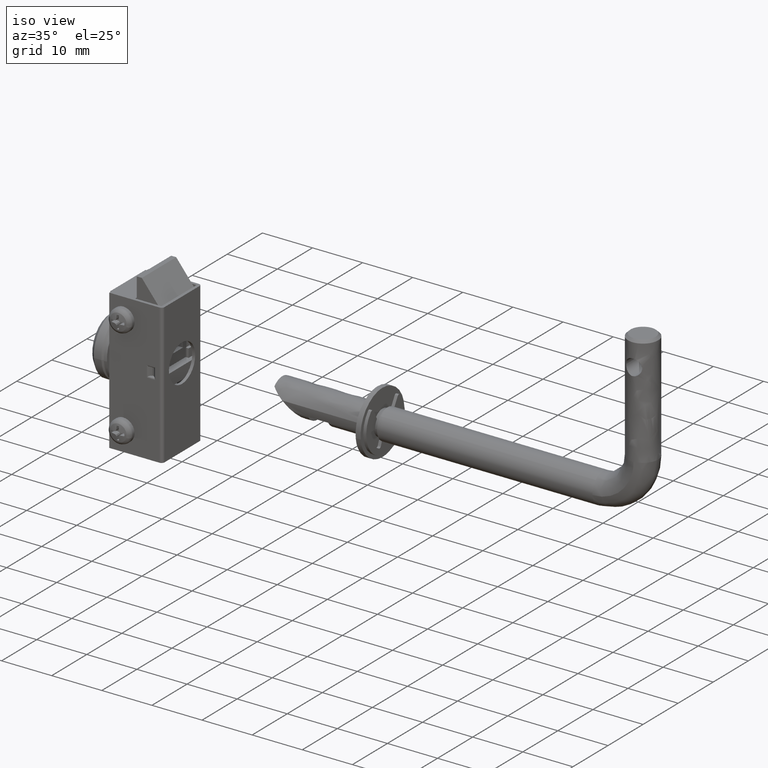
[diagram: clean part render]
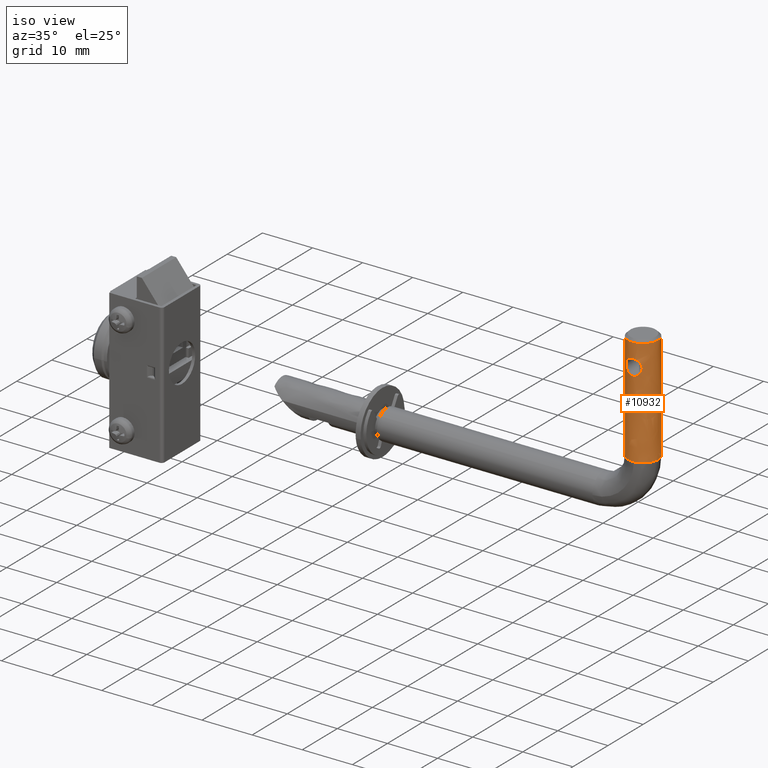
[diagram: same view with one face highlighted and labeled with its STEP entity id]
A machine part, iso view. The second image highlights one B-rep face of the part: STEP entity #10932.
In plain terms, the highlighted face is a freeform B-spline surface patch.
Its self-contained STEP definition (entity closure, byte-faithful):
#9987=CARTESIAN_POINT('',(69.823845482699298,-2.065063301075790,45.500000000000000));
#9988=VERTEX_POINT('',#9987);
#10004=CARTESIAN_POINT('',(71.999969000000092,-2.999999999999993,45.500000000000000));
#10005=VERTEX_POINT('',#10004);
#10006=CARTESIAN_POINT('',(71.999969000000092,-2.999999999999993,45.500000000000000));
#10007=CARTESIAN_POINT('',(70.711066586403973,-2.999999999999993,45.500000000000000));
#10008=CARTESIAN_POINT('',(69.823845482699298,-2.065063301075790,45.500000000000000));
#10016=(BOUNDED_CURVE()B_SPLINE_CURVE(2,(#10006,#10007,#10008),.UNSPECIFIED.,.F.,.U.)B_SPLINE_CURVE_WITH_KNOTS((3,3),(0.500000000000000,0.628950532427898),.UNSPECIFIED.)CURVE()GEOMETRIC_REPRESENTATION_ITEM()RATIONAL_B_SPLINE_CURVE((1.0,0.848925053957938,0.853699665744995))REPRESENTATION_ITEM(''));
#10017=EDGE_CURVE('',#10005,#9988,#10016,.T.);
#10019=CARTESIAN_POINT('',(74.176092517300887,2.065063301075807,45.500000000000000));
#10020=VERTEX_POINT('',#10019);
#10021=CARTESIAN_POINT('',(74.176092517300887,2.065063301075807,45.500000000000007));
#10022=CARTESIAN_POINT('',(74.999969000000092,1.196877957152594,45.500000000000007));
#10023=CARTESIAN_POINT('',(74.999969000000092,6.888411E-015,45.500000000000000));
#10024=CARTESIAN_POINT('',(74.999969000000092,-2.999999999999993,45.500000000000014));
#10025=CARTESIAN_POINT('',(71.999969000000092,-2.999999999999993,45.500000000000000));
#10033=(BOUNDED_CURVE()B_SPLINE_CURVE(2,(#10021,#10022,#10023,#10024,#10025),.UNSPECIFIED.,.F.,.U.)B_SPLINE_CURVE_WITH_KNOTS((3,2,3),(0.128950532427898,0.250000000000000,0.500000000000000),.UNSPECIFIED.)CURVE()GEOMETRIC_REPRESENTATION_ITEM()RATIONAL_B_SPLINE_CURVE((0.853699665744995,0.858181727228609,1.0,0.707106781186548,1.0))REPRESENTATION_ITEM(''));
#10034=EDGE_CURVE('',#10020,#10005,#10033,.T.);
#10147=CARTESIAN_POINT('',(73.587595390500852,-2.545475182302232,41.198604859401740));
#10148=VERTEX_POINT('',#10147);
#10154=CARTESIAN_POINT('',(72.005606471608118,-2.999994703147630,42.599990068379768));
#10155=VERTEX_POINT('',#10154);
#10156=CARTESIAN_POINT('',(73.587595390500852,-2.545475182302232,41.198604859401740));
#10157=CARTESIAN_POINT('',(73.582749011089618,-2.548498835997282,41.237358478990522));
#10158=CARTESIAN_POINT('',(73.567995361629585,-2.557655808431483,41.328063416698427));
#10159=CARTESIAN_POINT('',(73.545667456432554,-2.571213076018919,41.416650394664337));
#10160=CARTESIAN_POINT('',(73.514875810477278,-2.589474416957653,41.517531279403912));
#10161=CARTESIAN_POINT('',(73.496860091146843,-2.599971811698215,41.567503497107353));
#10162=CARTESIAN_POINT('',(73.436382139487321,-2.634172115528533,41.712523630936623));
#10163=CARTESIAN_POINT('',(73.387427891106498,-2.660650773724465,41.803511676603769));
#10164=CARTESIAN_POINT('',(73.301286646211707,-2.703257028515044,41.932330778691522));
#10165=CARTESIAN_POINT('',(73.270299699333350,-2.718003321669512,41.974119680139367));
#10166=CARTESIAN_POINT('',(73.205064660215683,-2.747549197376540,42.053752194129522));
#10167=CARTESIAN_POINT('',(73.170730907663895,-2.762396307594811,42.091756210529127));
#10168=CARTESIAN_POINT('',(73.062572423328788,-2.806588887480741,42.200555802698190));
#10169=CARTESIAN_POINT('',(72.983479114315926,-2.835645682963112,42.266321744173247));
#10170=CARTESIAN_POINT('',(72.810886389755865,-2.889739014385298,42.383212164390962));
#10171=CARTESIAN_POINT('',(72.719912434903890,-2.913979800689720,42.432658611702713));
#10172=CARTESIAN_POINT('',(72.576182478796497,-2.944550429849274,42.493547903028272));
#10173=CARTESIAN_POINT('',(72.527052819429997,-2.953775750627682,42.511612707901577));
#10174=CARTESIAN_POINT('',(72.426202721218445,-2.970005614910065,42.543086240717180));
#10175=CARTESIAN_POINT('',(72.374133625087964,-2.977038073690178,42.556547105287400));
#10176=CARTESIAN_POINT('',(72.217582902818904,-2.993937812442387,42.588709041921362));
#10177=CARTESIAN_POINT('',(72.112138387863098,-2.999794512576407,42.599614709391517));
#10178=CARTESIAN_POINT('',(72.005606471608118,-2.999994703147630,42.599990068379768));
#10179=B_SPLINE_CURVE_WITH_KNOTS('',3,(#10156,#10157,#10158,#10159,#10160,#10161,#10162,#10163,#10164,#10165,#10166,#10167,#10168,#10169,#10170,#10171,#10172,#10173,#10174,#10175,#10176,#10177,#10178),.UNSPECIFIED.,.F.,.U.,(4,1,2,2,2,2,2,2,2,2,2,4),(0.269799926700225,0.281249999999963,0.296874999999961,0.312499999999960,0.343749999999956,0.359374999999956,0.374999999999956,0.406249999999952,0.437499999999948,0.453124999999948,0.468749999999948,0.499999999999952),.UNSPECIFIED.);
#10180=EDGE_CURVE('',#10148,#10155,#10179,.T.);
#10182=CARTESIAN_POINT('',(70.400029805620449,-2.537755433232541,40.986037676887847));
#10183=VERTEX_POINT('',#10182);
#10184=CARTESIAN_POINT('',(72.005606471608118,-2.999994703147630,42.599990068379768));
#10185=CARTESIAN_POINT('',(71.952340515315953,-3.000094821517700,42.600177748016968));
#10186=CARTESIAN_POINT('',(71.898583485750621,-2.998765990972000,42.597691042330467));
#10187=CARTESIAN_POINT('',(71.791466110083576,-2.993226243276506,42.587268796588027));
#10188=CARTESIAN_POINT('',(71.685951368870704,-2.984893465814944,42.571563572389692));
#10189=CARTESIAN_POINT('',(71.583483073668575,-2.971389126666411,42.545744535013142));
#10190=CARTESIAN_POINT('',(71.482501382853997,-2.955476521700389,42.514930345699760));
#10191=CARTESIAN_POINT('',(71.432586843270641,-2.946279892931670,42.496954642997579));
#10192=CARTESIAN_POINT('',(71.286197361795345,-2.915557613365116,42.435866622225120));
#10193=CARTESIAN_POINT('',(71.194755253070653,-2.891319288351653,42.386480770195369));
#10194=CARTESIAN_POINT('',(71.065897767426350,-2.851234379537946,42.300071304720333));
#10195=CARTESIAN_POINT('',(71.024280354624409,-2.837226007186647,42.269143686187967));
#10196=CARTESIAN_POINT('',(70.944075012287414,-2.808363929500503,42.203238088362937));
#10197=CARTESIAN_POINT('',(70.905938905429807,-2.793677834807850,42.168642585616702));
#10198=CARTESIAN_POINT('',(70.797100941356931,-2.749408737837447,42.060008536328048));
#10199=CARTESIAN_POINT('',(70.731906891487782,-2.719593851155135,41.981185793019570));
#10200=CARTESIAN_POINT('',(70.645042349693412,-2.676792975335107,41.852555208993728));
#10201=CARTESIAN_POINT('',(70.617938501239124,-2.662851289355921,41.807881525511412));
#10202=CARTESIAN_POINT('',(70.568595819771119,-2.636656286610669,41.716834468106633));
#10203=CARTESIAN_POINT('',(70.546189676252382,-2.624322132773961,41.670230699783573));
#10204=CARTESIAN_POINT('',(70.485722837287568,-2.590213593363614,41.527061006430827));
#10205=CARTESIAN_POINT('',(70.454314827521941,-2.571303249235395,41.427148742193189));
#10206=CARTESIAN_POINT('',(70.411133299067188,-2.544847502926011,41.217034430571587));
#10207=CARTESIAN_POINT('',(70.400321662894783,-2.537939193378024,41.111397590866268));
#10208=CARTESIAN_POINT('',(70.399956841999582,-2.537709226712186,40.998804182104493));
#10209=CARTESIAN_POINT('',(70.399974225049121,-2.537720274518976,40.992421977537511));
#10210=CARTESIAN_POINT('',(70.400029805620449,-2.537755433232541,40.986037676887847));
#10211=B_SPLINE_CURVE_WITH_KNOTS('',3,(#10184,#10185,#10186,#10187,#10188,#10189,#10190,#10191,#10192,#10193,#10194,#10195,#10196,#10197,#10198,#10199,#10200,#10201,#10202,#10203,#10204,#10205,#10206,#10207,#10208,#10209,#10210),.UNSPECIFIED.,.F.,.U.,(4,2,1,2,2,2,2,2,2,2,2,2,2,4),(0.499999999999952,0.515624999999956,0.531249999999960,0.546874999999964,0.562499999999968,0.593749999999976,0.609374999999981,0.624999999999987,0.656249999999994,0.671874999999997,0.687499999999999,0.718750000000002,0.750000000000005,0.751877152870739),.UNSPECIFIED.);
#10212=EDGE_CURVE('',#10155,#10183,#10211,.T.);
#10344=CARTESIAN_POINT('',(71.999969000000107,-3.000000000000001,39.400000000000013));
#10345=VERTEX_POINT('',#10344);
#10346=CARTESIAN_POINT('',(70.400029805620449,-2.537755433232541,40.986037676887847));
#10347=CARTESIAN_POINT('',(70.400436862018921,-2.538012886811111,40.939280488805871));
#10348=CARTESIAN_POINT('',(70.402892745423401,-2.539563593731716,40.892410871679850));
#10349=CARTESIAN_POINT('',(70.410044749740109,-2.544043419779515,40.818726369597798));
#10350=CARTESIAN_POINT('',(70.413332194685523,-2.546097347215981,40.791908095993030));
#10351=CARTESIAN_POINT('',(70.421195638778443,-2.550980715275310,40.738861580465141));
#10352=CARTESIAN_POINT('',(70.425772735073039,-2.553810853071396,40.712577558707842));
#10353=CARTESIAN_POINT('',(70.451799415205855,-2.569780895769073,40.582310328299947));
#10354=CARTESIAN_POINT('',(70.482566710014552,-2.588370415806025,40.481755448684353));
#10355=CARTESIAN_POINT('',(70.543320348553067,-2.622731693992392,40.335962126776032));
#10356=CARTESIAN_POINT('',(70.565887764515665,-2.635183101936085,40.288590946551722));
#10357=CARTESIAN_POINT('',(70.614991863678156,-2.661318664574389,40.197173626928532));
#10358=CARTESIAN_POINT('',(70.668209408255208,-2.688769049753806,40.108732036310549));
#10359=CARTESIAN_POINT('',(70.729588887893698,-2.717983546743166,40.025930908572313));
#10360=CARTESIAN_POINT('',(70.795167279881198,-2.747681332602704,39.945898932060523));
#10361=CARTESIAN_POINT('',(70.829922433531110,-2.762702939661478,39.907466587795817));
#10362=CARTESIAN_POINT('',(70.938649487381241,-2.807086403913257,39.798270295677028));
#10363=CARTESIAN_POINT('',(71.017554590190002,-2.836008516193278,39.732882172408772));
#10364=CARTESIAN_POINT('',(71.146217189058547,-2.876304995287775,39.645825266033860));
#10365=CARTESIAN_POINT('',(71.191111367910651,-2.889293223032441,39.618519243380199));
#10366=CARTESIAN_POINT('',(71.283133250964667,-2.913487971608178,39.568606876497697));
#10367=CARTESIAN_POINT('',(71.330166158275759,-2.924684607817888,39.546010634171950));
#10368=CARTESIAN_POINT('',(71.474356733988699,-2.955230694915206,39.485201137856478));
#10369=CARTESIAN_POINT('',(71.574573602771025,-2.971554531780333,39.453886385792501));
#10370=CARTESIAN_POINT('',(71.731676958619389,-2.988443445780479,39.421748906180483));
#10371=CARTESIAN_POINT('',(71.785147314776410,-2.992778131156864,39.413575902609942));
#10372=CARTESIAN_POINT('',(71.892112635950610,-2.998538975997359,39.402734592615673));
#10373=CARTESIAN_POINT('',(71.946038173569860,-3.000000023860873,39.400000000147912));
#10374=CARTESIAN_POINT('',(71.999969000000107,-3.000000000000001,39.400000000000013));
#10375=B_SPLINE_CURVE_WITH_KNOTS('',3,(#10346,#10347,#10348,#10349,#10350,#10351,#10352,#10353,#10354,#10355,#10356,#10357,#10358,#10359,#10360,#10361,#10362,#10363,#10364,#10365,#10366,#10367,#10368,#10369,#10370,#10371,#10372,#10373,#10374),.UNSPECIFIED.,.F.,.U.,(4,2,2,2,2,2,1,2,2,2,2,2,2,2,4),(0.751877152870739,0.765625000000007,0.773437500000007,0.781250000000006,0.812500000000006,0.828125000000003,0.843750000000001,0.859374999999999,0.874999999999997,0.906249999999994,0.921874999999995,0.937499999999996,0.968749999999998,0.984374999999999,1.0),.UNSPECIFIED.);
#10376=EDGE_CURVE('',#10183,#10345,#10375,.T.);
#10378=CARTESIAN_POINT('',(71.999969000000107,-3.000000000000001,39.400000000000013));
#10379=CARTESIAN_POINT('',(72.107830656653150,-3.0,39.399999999999999));
#10380=CARTESIAN_POINT('',(72.213517938728529,-2.994204917263764,39.410792273531833));
#10381=CARTESIAN_POINT('',(72.369003280908032,-2.977671952795399,39.442242064283001));
#10382=CARTESIAN_POINT('',(72.420320563449479,-2.970850191223971,39.455289461521311));
#10383=CARTESIAN_POINT('',(72.521928122538995,-2.954692026250490,39.486598282352013));
#10384=CARTESIAN_POINT('',(72.571721756761619,-2.945425506056937,39.504727791274789));
#10385=CARTESIAN_POINT('',(72.716492294948864,-2.914845600400927,39.565581950755913));
#10386=CARTESIAN_POINT('',(72.807674274767933,-2.890633395318378,39.614934205100802));
#10387=CARTESIAN_POINT('',(72.936933458342153,-2.850286812420490,39.702002938918703));
#10388=CARTESIAN_POINT('',(72.978612578931020,-2.836200857916560,39.733152812670319));
#10389=CARTESIAN_POINT('',(73.057950817666708,-2.807570664207074,39.798617661144213));
#10390=CARTESIAN_POINT('',(73.095815508183762,-2.792963022273569,39.833066471089431));
#10391=CARTESIAN_POINT('',(73.168073868694520,-2.763521852458975,39.905402153242349));
#10392=CARTESIAN_POINT('',(73.202467424162592,-2.748687411044941,39.943288771992059));
#10393=CARTESIAN_POINT('',(73.267801235926484,-2.719170161151391,40.022634919256248));
#10394=CARTESIAN_POINT('',(73.298870626737056,-2.704419472692843,40.064310716988352));
#10395=CARTESIAN_POINT('',(73.385214393008454,-2.661806845364600,40.192699137693829));
#10396=CARTESIAN_POINT('',(73.434115570429583,-2.635405590228966,40.283075200480091));
#10397=CARTESIAN_POINT('',(73.494532948694442,-2.601309930762620,40.426442686670832));
#10398=CARTESIAN_POINT('',(73.512497867450733,-2.590866279601647,40.475542509073662));
#10399=CARTESIAN_POINT('',(73.536004994970583,-2.576950976555248,40.551342858275007));
#10400=CARTESIAN_POINT('',(73.543272046206084,-2.572600792702120,40.577012137747268));
#10401=CARTESIAN_POINT('',(73.556439982838498,-2.564655378529928,40.628380431591609));
#10402=CARTESIAN_POINT('',(73.562368897454604,-2.561043720083612,40.654161674266390));
#10403=CARTESIAN_POINT('',(73.588777465846405,-2.544857888131451,40.783553580189363));
#10404=CARTESIAN_POINT('',(73.599648489390930,-2.537917585080123,40.888611429080257));
#10405=CARTESIAN_POINT('',(73.600118886816446,-2.537621006785845,41.048639596513382));
#10406=CARTESIAN_POINT('',(73.597561838298930,-2.539239075206531,41.102776727903162));
#10407=CARTESIAN_POINT('',(73.590945210040630,-2.543383063762909,41.170291830628209));
#10408=CARTESIAN_POINT('',(73.589363089642120,-2.544372697435423,41.184474587851383));
#10409=CARTESIAN_POINT('',(73.587595390500852,-2.545475182302232,41.198604859401740));
#10410=B_SPLINE_CURVE_WITH_KNOTS('',3,(#10378,#10379,#10380,#10381,#10382,#10383,#10384,#10385,#10386,#10387,#10388,#10389,#10390,#10391,#10392,#10393,#10394,#10395,#10396,#10397,#10398,#10399,#10400,#10401,#10402,#10403,#10404,#10405,#10406,#10407,#10408,#10409),.UNSPECIFIED.,.F.,.U.,(4,2,2,2,2,2,2,2,2,2,2,2,2,2,2,4),(0.0,0.031249999999999,0.046874999999997,0.062499999999994,0.093749999999993,0.109374999999990,0.124999999999987,0.140624999999984,0.156249999999981,0.187499999999975,0.203124999999973,0.210937499999972,0.218749999999971,0.249999999999966,0.265624999999964,0.269799926700225),.UNSPECIFIED.);
#10411=EDGE_CURVE('',#10345,#10148,#10410,.T.);
#10845=CARTESIAN_POINT('',(69.823845886963227,-2.065063727081258,23.462499999545319));
#10846=CARTESIAN_POINT('',(71.888909614044479,-4.241186840118119,23.462499999545329));
#10847=CARTESIAN_POINT('',(74.065032727081359,-2.176123113036859,23.462499999545319));
#10848=CARTESIAN_POINT('',(76.241155840118225,-0.111059385955598,23.462499999545329));
#10849=CARTESIAN_POINT('',(74.176092113036958,2.065063727081264,23.462499999545319));
#10850=CARTESIAN_POINT('',(69.823845886963227,-2.065063727081254,46.050937500011372));
#10851=CARTESIAN_POINT('',(71.888909614044479,-4.241186840118116,46.050937500011372));
#10852=CARTESIAN_POINT('',(74.065032727081359,-2.176123113036855,46.050937500011372));
#10853=CARTESIAN_POINT('',(76.241155840118225,-0.111059385955594,46.050937500011372));
#10854=CARTESIAN_POINT('',(74.176092113036958,2.065063727081268,46.050937500011372));
#10862=(BOUNDED_SURFACE()B_SPLINE_SURFACE(2,1,((#10845,#10850),(#10846,#10851),(#10847,#10852),(#10848,#10853),(#10849,#10854)),.UNSPECIFIED.,.F.,.F.,.U.)B_SPLINE_SURFACE_WITH_KNOTS((3,2,3),(2,2),(0.0,4.970562748477149,9.941125496954298),(0.0,22.588437500466060),.UNSPECIFIED.)GEOMETRIC_REPRESENTATION_ITEM()RATIONAL_B_SPLINE_SURFACE(((1.0,1.0),(0.707106781186548,0.707106781186548),(1.0,1.0),(0.707106781186548,0.707106781186548),(1.0,1.0)))REPRESENTATION_ITEM('')SURFACE());
#10863=CARTESIAN_POINT('',(69.823845049826389,-2.065062844922371,24.0));
#10864=VERTEX_POINT('',#10863);
#10865=CARTESIAN_POINT('',(72.209168756771504,-2.992697021378335,23.999999999612690));
#10866=VERTEX_POINT('',#10865);
#10867=CARTESIAN_POINT('',(69.823845049826389,-2.065062844922371,24.000000000000004));
#10868=CARTESIAN_POINT('',(70.711066561787305,-2.999999999999998,24.000000000000007));
#10869=CARTESIAN_POINT('',(71.999969000000092,-2.999999999999997,24.0));
#10870=CARTESIAN_POINT('',(72.104696349676800,-2.999999999999997,23.999999999999993));
#10871=CARTESIAN_POINT('',(72.209168756771504,-2.992697021378336,23.999999999612690));
#10879=(BOUNDED_CURVE()B_SPLINE_CURVE(2,(#10867,#10868,#10869,#10870,#10871),.UNSPECIFIED.,.F.,.U.)B_SPLINE_CURVE_WITH_KNOTS((3,2,3),(0.121049465481353,0.250000000000000,0.262166313699916),.UNSPECIFIED.)CURVE()GEOMETRIC_REPRESENTATION_ITEM()RATIONAL_B_SPLINE_CURVE((0.853699665899822,0.848925051508473,1.0,0.985746276877350,0.972879875889915))REPRESENTATION_ITEM(''));
#10880=EDGE_CURVE('',#10864,#10866,#10879,.T.);
#10881=ORIENTED_EDGE('',*,*,#10880,.T.);
#10882=CARTESIAN_POINT('',(74.999969000000092,2.939055E-015,24.0));
#10883=VERTEX_POINT('',#10882);
#10884=CARTESIAN_POINT('',(72.209168756771504,-2.992697021378336,23.999999999612690));
#10885=CARTESIAN_POINT('',(74.999969000000092,-2.797610537967001,24.000000000000004));
#10886=CARTESIAN_POINT('',(74.999969000000092,2.939055E-015,24.0));
#10894=(BOUNDED_CURVE()B_SPLINE_CURVE(2,(#10884,#10885,#10886),.UNSPECIFIED.,.F.,.U.)B_SPLINE_CURVE_WITH_KNOTS((3,3),(0.262166313699916,0.500000000000000),.UNSPECIFIED.)CURVE()GEOMETRIC_REPRESENTATION_ITEM()RATIONAL_B_SPLINE_CURVE((0.972879875889915,0.721360504309198,1.0))REPRESENTATION_ITEM(''));
#10895=EDGE_CURVE('',#10866,#10883,#10894,.T.);
#10896=ORIENTED_EDGE('',*,*,#10895,.T.);
#10897=CARTESIAN_POINT('',(74.176092950173796,2.065062844922376,24.0));
#10898=VERTEX_POINT('',#10897);
#10899=CARTESIAN_POINT('',(74.999969000000092,2.939055E-015,24.0));
#10900=CARTESIAN_POINT('',(74.999969000000092,1.196877933064092,23.999999999999996));
#10901=CARTESIAN_POINT('',(74.176092950173796,2.065062844922376,24.000000000000004));
#10909=(BOUNDED_CURVE()B_SPLINE_CURVE(2,(#10899,#10900,#10901),.UNSPECIFIED.,.F.,.U.)B_SPLINE_CURVE_WITH_KNOTS((3,3),(0.500000000000000,0.621049465481353),.UNSPECIFIED.)CURVE()GEOMETRIC_REPRESENTATION_ITEM()RATIONAL_B_SPLINE_CURVE((1.0,0.858181729678075,0.853699665899822))REPRESENTATION_ITEM(''));
#10910=EDGE_CURVE('',#10883,#10898,#10909,.T.);
#10911=ORIENTED_EDGE('',*,*,#10910,.T.);
#10912=CARTESIAN_POINT('',(74.176092950173796,2.065062844922376,24.0));
#10913=CARTESIAN_POINT('',(74.176092517300887,2.065063301075807,45.500000000000000));
#10914=QUASI_UNIFORM_CURVE('',1,(#10912,#10913),.UNSPECIFIED.,.F.,.U.);
#10915=EDGE_CURVE('',#10898,#10020,#10914,.T.);
#10916=ORIENTED_EDGE('',*,*,#10915,.T.);
#10917=ORIENTED_EDGE('',*,*,#10034,.T.);
#10918=ORIENTED_EDGE('',*,*,#10017,.T.);
#10919=CARTESIAN_POINT('',(69.823845049826389,-2.065062844922371,24.0));
#10920=CARTESIAN_POINT('',(69.823845482699298,-2.065063301075790,45.500000000000000));
#10921=QUASI_UNIFORM_CURVE('',1,(#10919,#10920),.UNSPECIFIED.,.F.,.U.);
#10922=EDGE_CURVE('',#10864,#9988,#10921,.T.);
#10923=ORIENTED_EDGE('',*,*,#10922,.F.);
#10924=EDGE_LOOP('',(#10881,#10896,#10911,#10916,#10917,#10918,#10923));
#10925=FACE_OUTER_BOUND('',#10924,.T.);
#10926=ORIENTED_EDGE('',*,*,#10212,.F.);
#10927=ORIENTED_EDGE('',*,*,#10180,.F.);
#10928=ORIENTED_EDGE('',*,*,#10411,.F.);
#10929=ORIENTED_EDGE('',*,*,#10376,.F.);
#10930=EDGE_LOOP('',(#10926,#10927,#10928,#10929));
#10931=FACE_BOUND('',#10930,.T.);
#10932=ADVANCED_FACE('',(#10925,#10931),#10862,.T.);